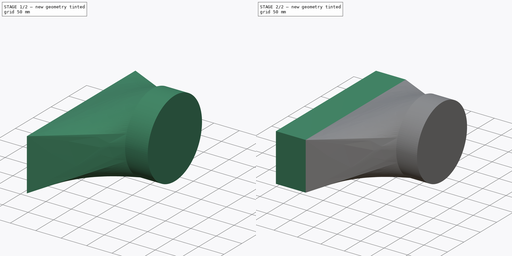
[diagram: build sequence overview — one tinted view per stage of 2, left to right]
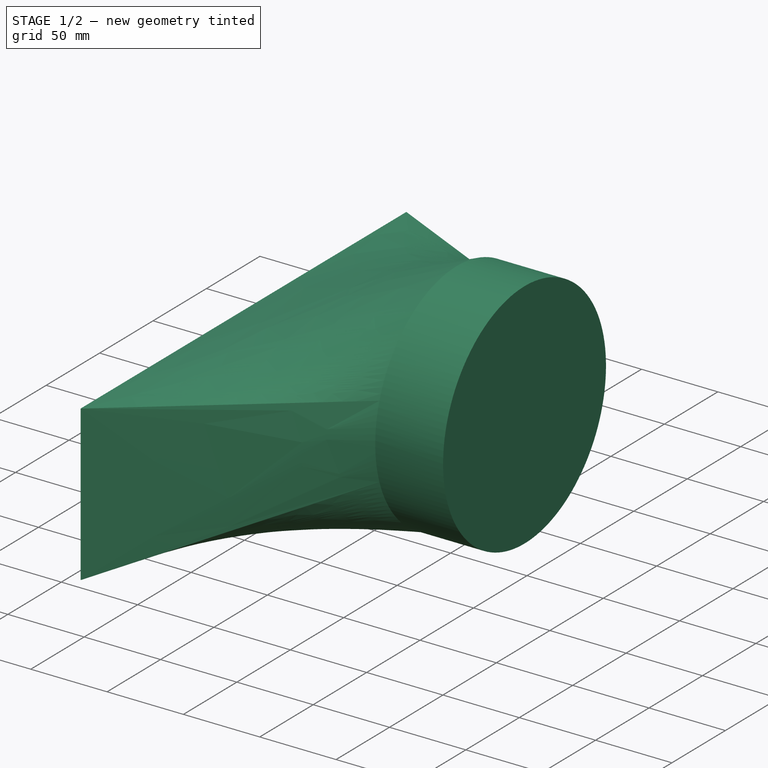
[diagram: stage 1 of 2 — iso view after this stage's code; geometry added in this stage tinted green]
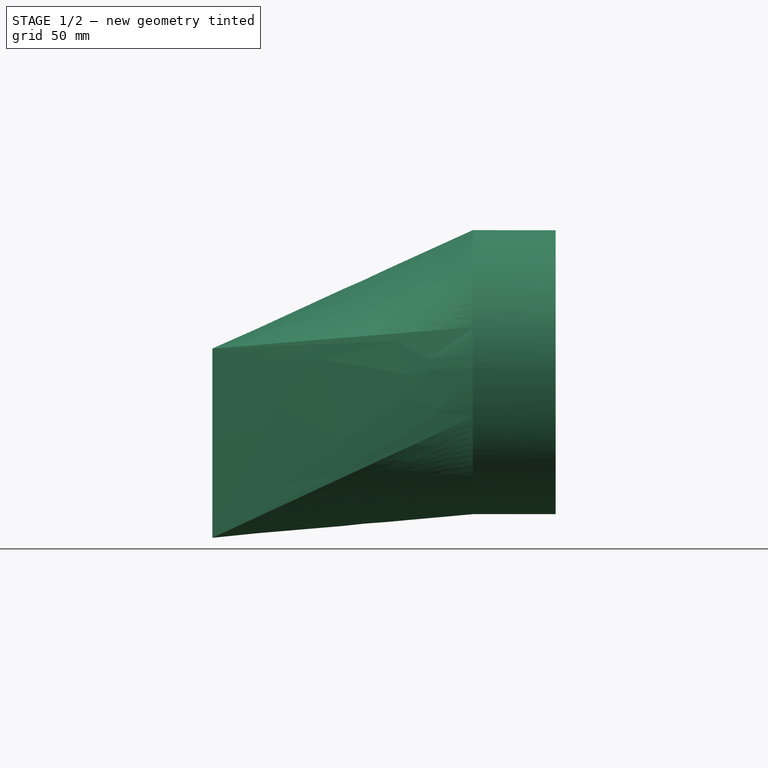
[diagram: stage 1 of 2 — front view after this stage's code; geometry added in this stage tinted green]
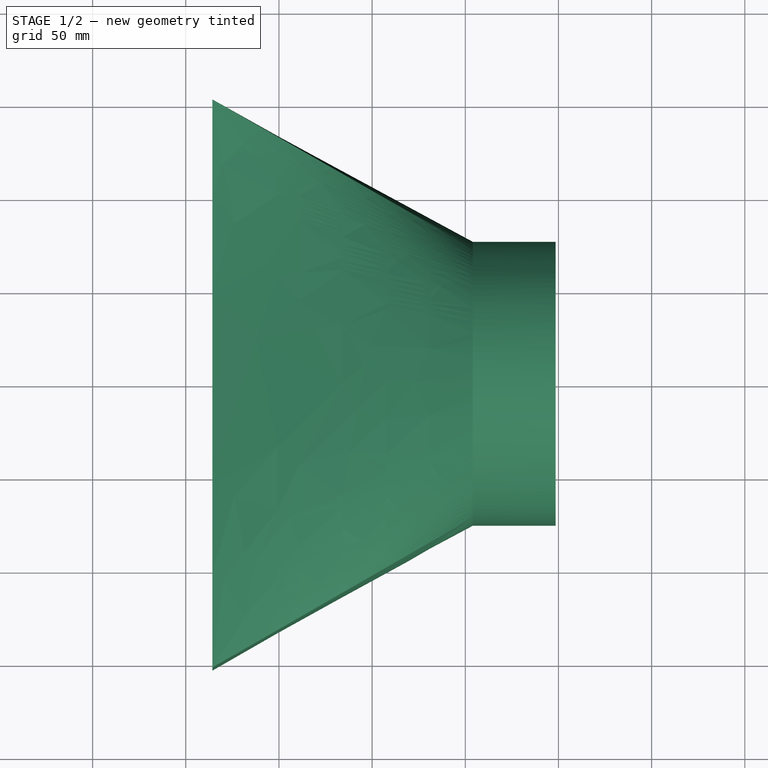
[diagram: stage 1 of 2 — top view after this stage's code; geometry added in this stage tinted green]
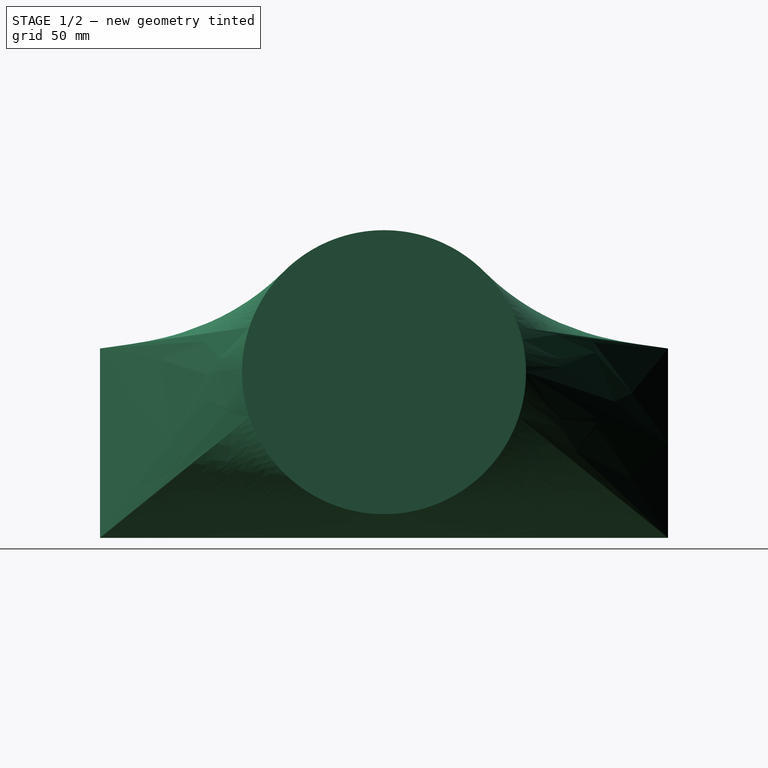
[diagram: stage 1 of 2 — right view after this stage's code; geometry added in this stage tinted green]
FCSTD DOCUMENT  (FreeCAD 0.21R33694 (Git))
Label: duct-transition
License: All rights reserved
LicenseURL: http://en.wikipedia.org/wiki/All_rights_reserved
objects: Sketcher::SketchObject×4, PartDesign::Pad×2, PartDesign::AdditiveLoft×1, PartDesign::Body×1
note: 11 computed .brp shape members not serialized (recipe doc carries the construction recipe); baked Part::Feature solids carry a one-line shape summary decoded from their .brp

FEATURE [Sketcher::SketchObject] Sketch  label="rect"
  FullyConstrained = true
  MapMode = 5
  Placement = pos=(114.3,0,0) rot=(0.57735,0.57735,0.57735;2.0944rad)
  sketch-geometry (7):
    g0: LineSegment StartX=-152.4 StartY=12.7 StartZ=0 EndX=152.4 EndY=12.7 EndZ=0
    g1: LineSegment StartX=152.4 StartY=12.7 StartZ=0 EndX=152.4 EndY=-88.9 EndZ=0
    g2: LineSegment StartX=152.4 StartY=-88.9 StartZ=0 EndX=-152.4 EndY=-88.9 EndZ=0
    g3: LineSegment StartX=-152.4 StartY=-88.9 StartZ=0 EndX=-152.4 EndY=12.7 EndZ=0
    g4: Circle CenterX=0 CenterY=0 CenterZ=0 NormalX=0 NormalY=0 NormalZ=1 AngleXU=0 Radius=76.2
    g5: GeomPoint X=0 Y=-88.9 Z=0
    g6: GeomPoint X=0 Y=-76.2 Z=0
  constraints (17):
    c: Coincident(g0,g1)
    c: Coincident(g1,g2)
    c: Coincident(g2,g3)
    c: Coincident(g3,g0)
    c: Horizontal(g2)
    c: Vertical(g1)
    c: Symmetric(g0,g0,g-2)
    c: DistanceX(g0,g0) = 304.8
    c: DistanceY(g1,g1) = 101.6
    c: Coincident(g4,g-1)
    c: Diameter(g4) = 152.4
    c: PointOnObject(g5,g2)
    c: PointOnObject(g5,g-2)
    c: PointOnObject(g6,g4)
    c: PointOnObject(g6,g-2)
    c: DistanceY(g5,g6) = 12.7
    c: Vertical(g3)
FEATURE [Sketcher::SketchObject] Sketch001  label="round"
  FullyConstrained = true
  MapMode = 5
  Placement = pos=(254,0,0) rot=(0.57735,0.57735,0.57735;2.0944rad)
  sketch-geometry (1):
    g0: Circle CenterX=0 CenterY=0 CenterZ=0 NormalX=0 NormalY=0 NormalZ=1 AngleXU=0 Radius=76.2
  constraints (2):
    c: Diameter(g0) = 152.4
    c: Coincident(g0,g-1)
FEATURE [Sketcher::SketchObject] Sketch003  label="round001"
  FullyConstrained = true
  MapMode = 5
  Placement = pos=(254,0,0) rot=(0.57735,0.57735,0.57735;2.0944rad)
  sketch-geometry (1):
    g0: Circle CenterX=0 CenterY=0 CenterZ=0 NormalX=0 NormalY=0 NormalZ=1 AngleXU=0 Radius=76.2
  constraints (2):
    c: Diameter(g0) = 152.4
    c: Coincident(g0,g-1)
FEATURE [PartDesign::Pad] Pad001
  Direction = (1,0,0)
  Length = 44.45
  Length2 = 10
  Placement = pos=(254,0,0) rot=(0.57735,0.57735,0.57735;2.0944rad)
  Profile = -> Sketch003
  ReferenceAxis = -> Sketch003 [N_Axis]
  Type = 0
FEATURE [PartDesign::AdditiveLoft] AdditiveLoft
  BaseFeature = -> Pad001
  Closed = false
  Placement = pos=(254,0,0) rot=(0.57735,0.57735,0.57735;2.0944rad)
  Profile = -> Sketch
  Ruled = false
  Sections = -> [Sketch001]
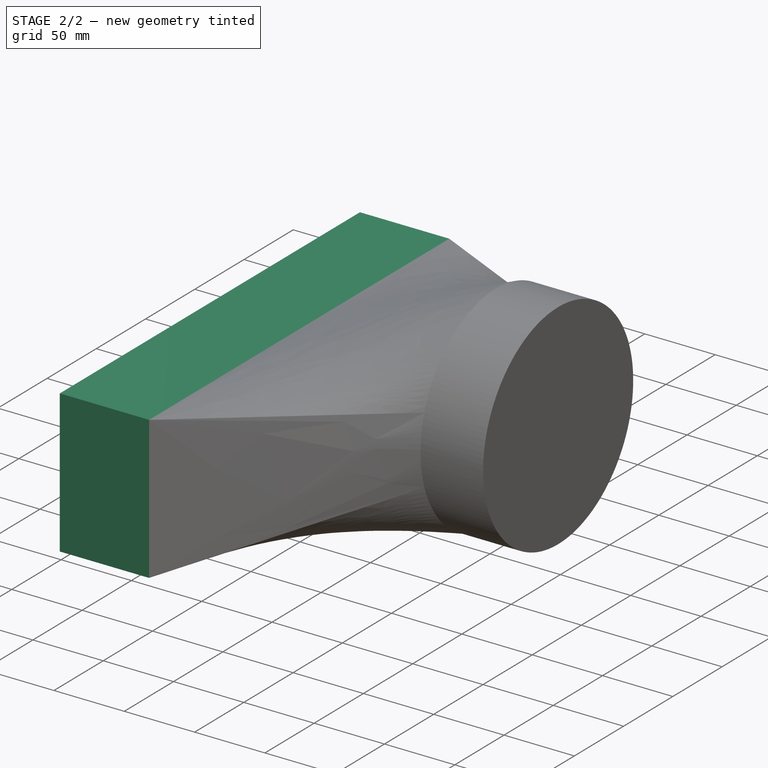
[diagram: stage 2 of 2 — iso view after this stage's code; geometry added in this stage tinted green]
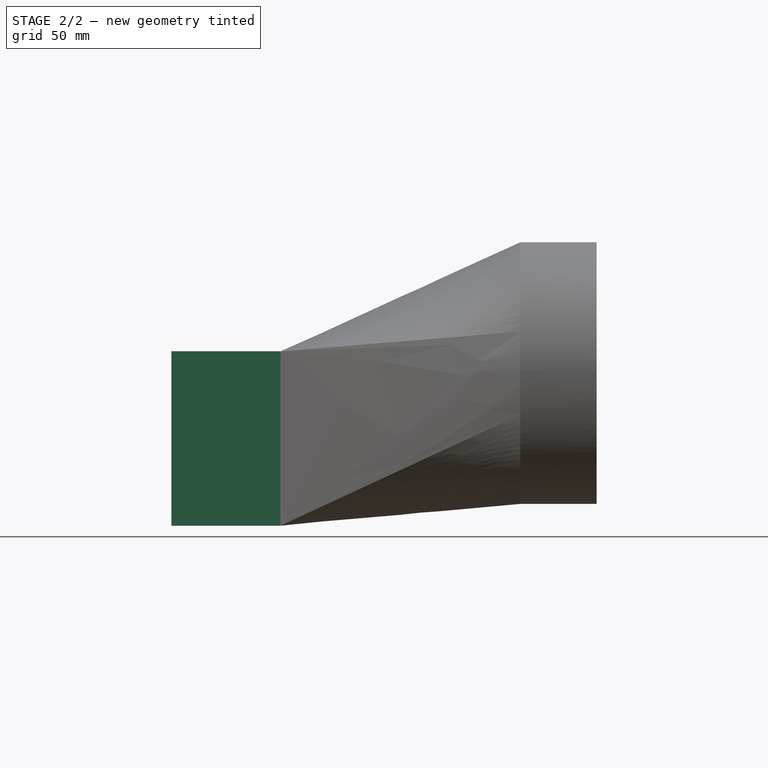
[diagram: stage 2 of 2 — front view after this stage's code; geometry added in this stage tinted green]
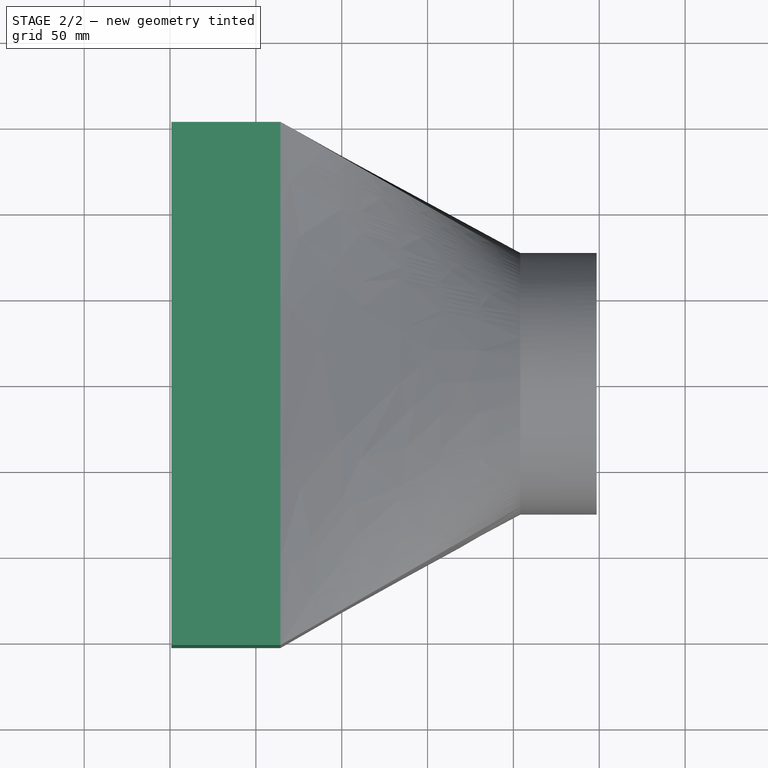
[diagram: stage 2 of 2 — top view after this stage's code; geometry added in this stage tinted green]
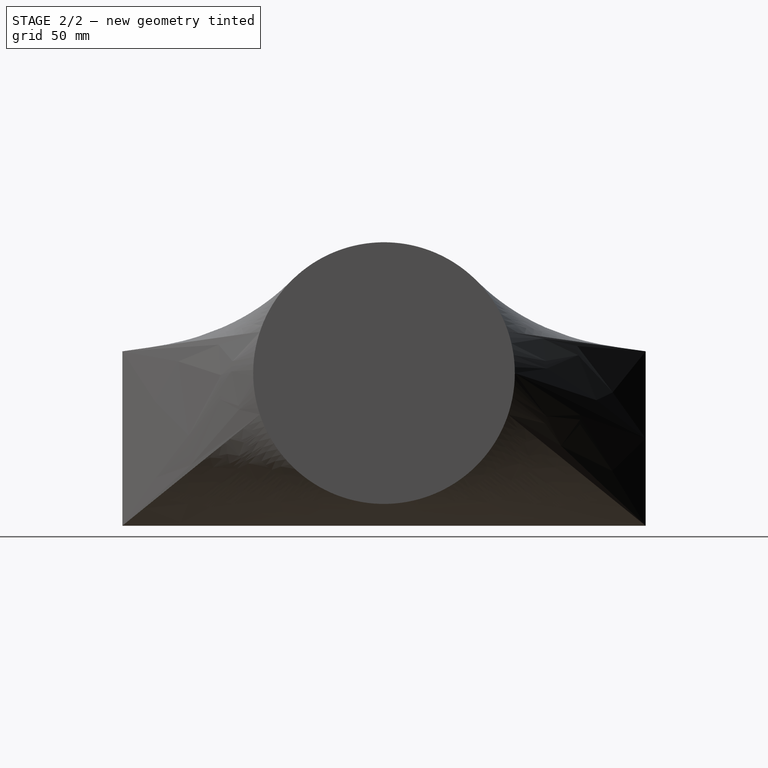
[diagram: stage 2 of 2 — right view after this stage's code; geometry added in this stage tinted green]
FEATURE [Sketcher::SketchObject] Sketch004  label="rect001"
  FullyConstrained = true
  MapMode = 5
  Placement = pos=(114.3,0,0) rot=(0.57735,0.57735,0.57735;2.0944rad)
  sketch-geometry (7):
    g0: LineSegment StartX=-152.4 StartY=12.7 StartZ=0 EndX=152.4 EndY=12.7 EndZ=0
    g1: LineSegment StartX=152.4 StartY=12.7 StartZ=0 EndX=152.4 EndY=-88.9 EndZ=0
    g2: LineSegment StartX=152.4 StartY=-88.9 StartZ=0 EndX=-152.4 EndY=-88.9 EndZ=0
    g3: LineSegment StartX=-152.4 StartY=-88.9 StartZ=0 EndX=-152.4 EndY=12.7 EndZ=0
    g4: Circle CenterX=0 CenterY=0 CenterZ=0 NormalX=0 NormalY=0 NormalZ=1 AngleXU=0 Radius=76.2
    g5: GeomPoint X=0 Y=-76.2 Z=0
    g6: GeomPoint X=0 Y=-88.9 Z=0
  constraints (17):
    c: Coincident(g0,g1)
    c: Coincident(g1,g2)
    c: Coincident(g2,g3)
    c: Coincident(g3,g0)
    c: Horizontal(g2)
    c: Vertical(g1)
    c: Symmetric(g0,g0,g-2)
    c: DistanceX(g0,g0) = 304.8
    c: DistanceY(g1,g1) = 101.6
    c: Vertical(g3)
    c: Coincident(g4,g-1)
    c: Diameter(g4) = 152.4
    c: PointOnObject(g5,g4)
    c: PointOnObject(g6,g2)
    c: PointOnObject(g6,g-2)
    c: PointOnObject(g5,g-2)
    c: DistanceY(g6,g5) = 12.7
FEATURE [PartDesign::Pad] Pad
  BaseFeature = -> AdditiveLoft
  Direction = (1,0,0)
  Length = 63.5
  Length2 = 10
  Placement = pos=(254,0,0) rot=(0.57735,0.57735,0.57735;2.0944rad)
  Profile = -> Sketch004
  ReferenceAxis = -> Sketch004 [N_Axis]
  Reversed = true
  Type = 0
FEATURE [PartDesign::Body] Body
  Group = -> [Sketch,Sketch001,Sketch003,Pad001,AdditiveLoft,Sketch004,Pad]
  Origin = -> Origin
  Tip = -> Pad
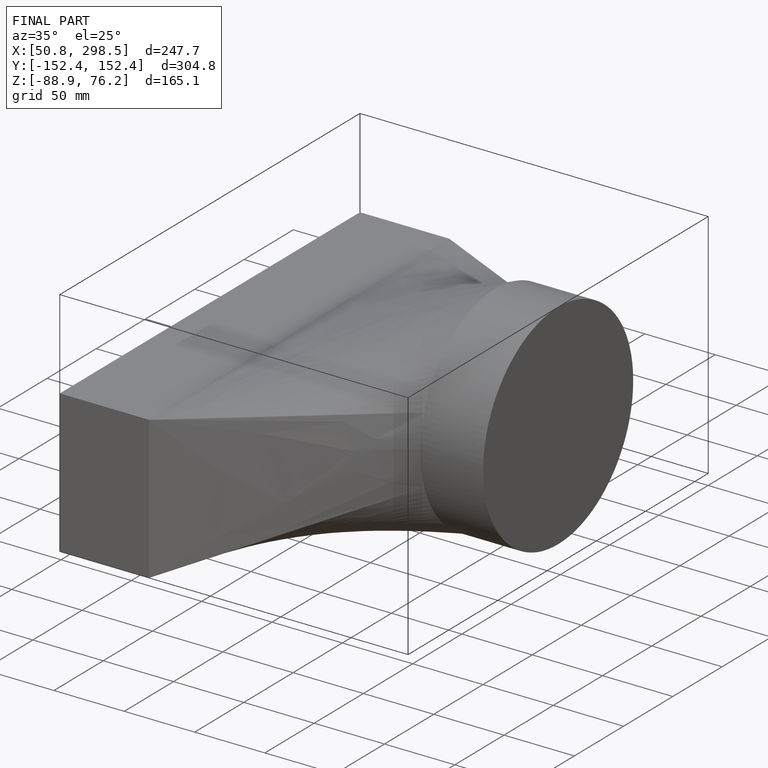
[diagram: finished part — iso view with bounding-box wireframe]
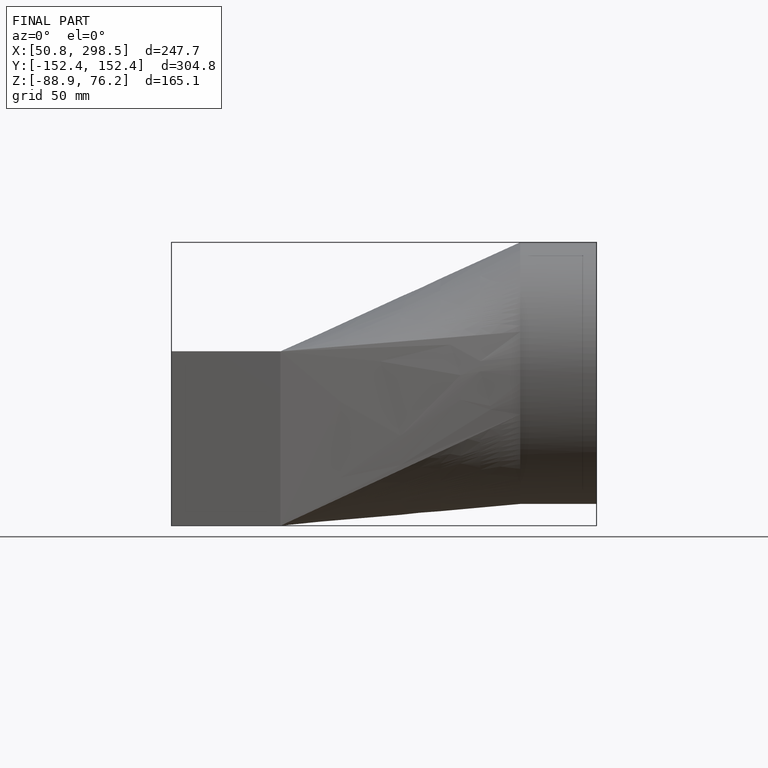
[diagram: finished part — front view with bounding-box wireframe]
